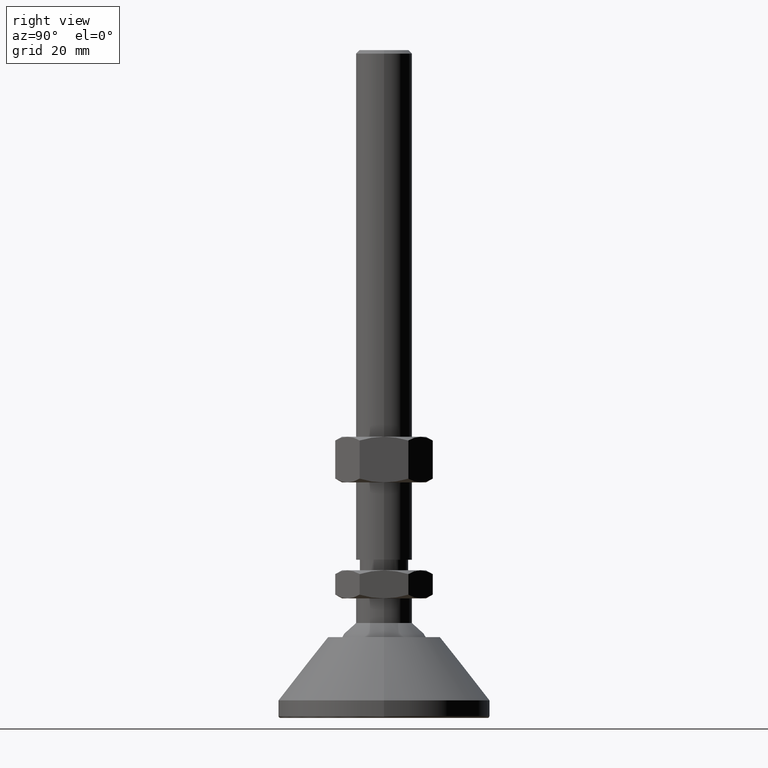
[diagram: clean part render]
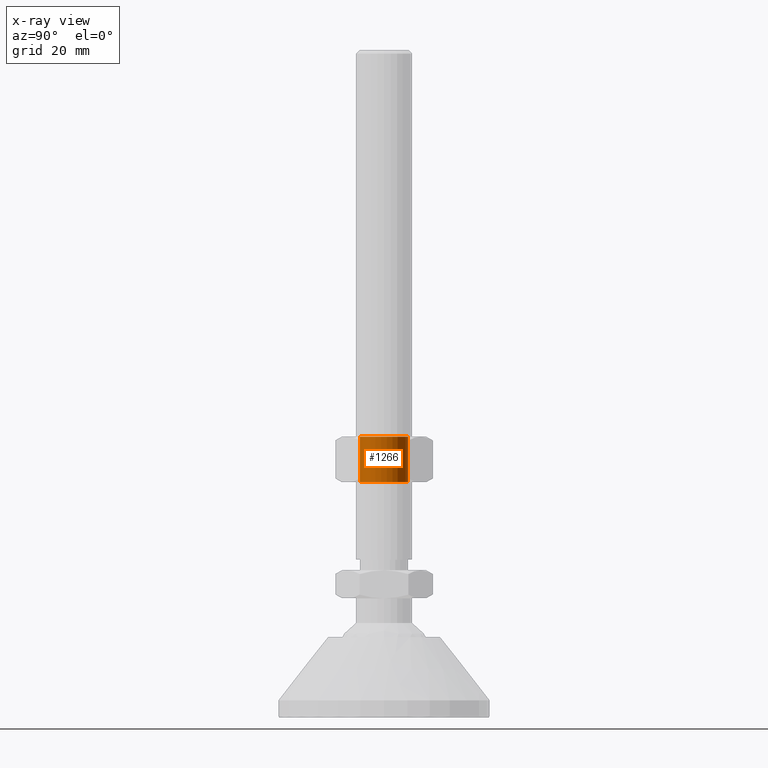
[diagram: x-ray — body ghosted, one internal face saturated and labeled with its STEP entity id]
A machine part, right view, then the same camera in x-ray: the body is ghosted and one INTERNAL B-rep face — a face not visible from any outside direction — is saturated and labeled: STEP entity #1266.
In plain terms, the highlighted cylindrical surface (bore or boss wall) has radius 6.85 mm, axis along (0, 0, 1).
Its self-contained STEP definition (entity closure, byte-faithful):
#575=CARTESIAN_POINT('',(1.136868E-013,6.850000000000004,67.000000333786488));
#576=VERTEX_POINT('',#575);
#577=CARTESIAN_POINT('',(1.136868E-013,-6.849999999999995,67.000000333786488));
#578=VERTEX_POINT('',#577);
#579=CARTESIAN_POINT('',(1.136868E-013,4.102567E-015,67.000000333786488));
#580=DIRECTION('',(0.0,6.123234E-017,1.0));
#581=DIRECTION('',(0.0,1.0,-6.123234E-017));
#582=AXIS2_PLACEMENT_3D('',#579,#580,#581);
#583=CIRCLE('',#582,6.850000000000000);
#584=EDGE_CURVE('',#576,#578,#583,.T.);
#586=CARTESIAN_POINT('',(1.136868E-013,4.102567E-015,67.000000333786488));
#587=DIRECTION('',(0.0,6.123234E-017,1.0));
#588=DIRECTION('',(0.0,1.0,-6.123234E-017));
#589=AXIS2_PLACEMENT_3D('',#586,#587,#588);
#590=CIRCLE('',#589,6.850000000000000);
#591=EDGE_CURVE('',#578,#576,#590,.T.);
#1113=CARTESIAN_POINT('',(1.136868E-013,-6.849999999999994,80.000000333786488));
#1114=VERTEX_POINT('',#1113);
#1115=CARTESIAN_POINT('',(1.136868E-013,6.850000000000005,80.000000333786488));
#1116=VERTEX_POINT('',#1115);
#1117=CARTESIAN_POINT('',(1.136868E-013,4.898587E-015,80.000000333786488));
#1118=DIRECTION('',(0.0,6.123234E-017,1.0));
#1119=DIRECTION('',(0.0,1.0,-6.123234E-017));
#1120=AXIS2_PLACEMENT_3D('',#1117,#1118,#1119);
#1121=CIRCLE('',#1120,6.850000000000000);
#1122=EDGE_CURVE('',#1114,#1116,#1121,.T.);
#1124=CARTESIAN_POINT('',(1.136868E-013,4.898587E-015,80.000000333786488));
#1125=DIRECTION('',(0.0,6.123234E-017,1.0));
#1126=DIRECTION('',(0.0,1.0,-6.123234E-017));
#1127=AXIS2_PLACEMENT_3D('',#1124,#1125,#1126);
#1128=CIRCLE('',#1127,6.850000000000000);
#1129=EDGE_CURVE('',#1116,#1114,#1128,.T.);
#1248=CARTESIAN_POINT('',(1.136868E-013,4.898587E-015,80.000000333786488));
#1249=DIRECTION('',(0.0,6.123234E-017,1.0));
#1250=DIRECTION('',(0.0,1.0,-6.123234E-017));
#1251=AXIS2_PLACEMENT_3D('',#1248,#1249,#1250);
#1252=CYLINDRICAL_SURFACE('',#1251,6.850000000000000);
#1253=ORIENTED_EDGE('',*,*,#591,.F.);
#1254=ORIENTED_EDGE('',*,*,#584,.F.);
#1255=CARTESIAN_POINT('',(1.136868E-013,6.850000000000005,80.000000333786488));
#1256=DIRECTION('',(0.0,0.0,-1.0));
#1257=VECTOR('',#1256,13.0);
#1258=LINE('',#1255,#1257);
#1259=EDGE_CURVE('',#1116,#576,#1258,.T.);
#1260=ORIENTED_EDGE('',*,*,#1259,.F.);
#1261=ORIENTED_EDGE('',*,*,#1129,.T.);
#1262=ORIENTED_EDGE('',*,*,#1122,.T.);
#1263=ORIENTED_EDGE('',*,*,#1259,.T.);
#1264=EDGE_LOOP('',(#1253,#1254,#1260,#1261,#1262,#1263));
#1265=FACE_OUTER_BOUND('',#1264,.T.);
#1266=ADVANCED_FACE('',(#1265),#1252,.F.);